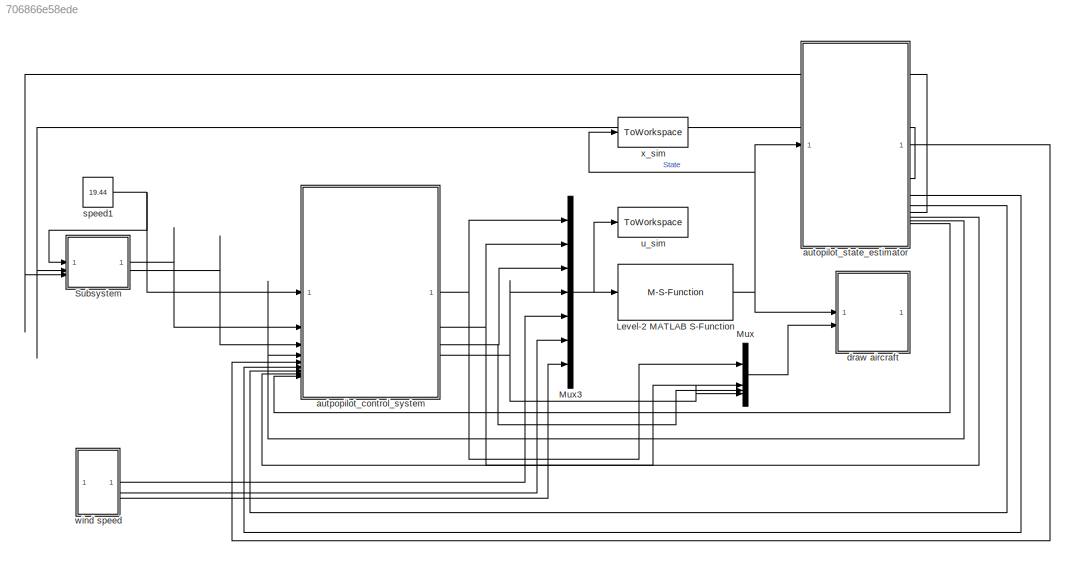
MODEL slx_706866e58ede
KIND model
CONFIG AbsTol = auto
CONFIG EnableMultiTasking = off
CONFIG FixedStep = auto
CONFIG InitFcn = parameters
CONFIG MaxStep = auto
CONFIG MinStep = 1e-200
CONFIG RelTol = 1e-3
CONFIG SampleTimeConstraint = Unconstrained
CONFIG SolverName = ode15s
CONFIG StartTime = 0.0
CONFIG StopTime = 75
BLOCK [M-S-Function] Level-2 MATLAB S-Function
  FunctionName = aircraft_dynamics
  Parameters = P
BLOCK [Mux] Mux
  DisplayOption = bar
BLOCK [Mux] Mux3
  DisplayOption = bar
  Inputs = 7
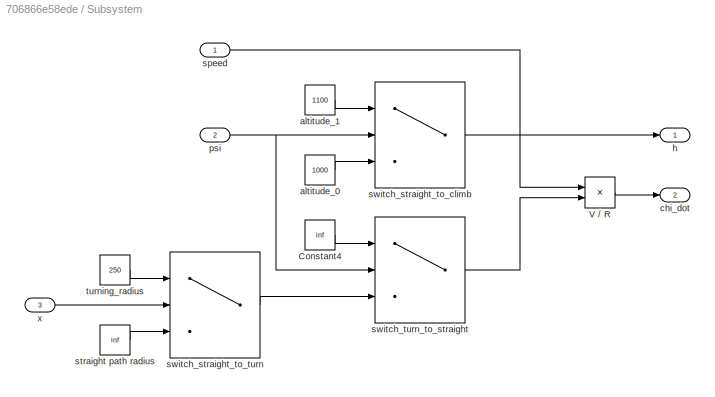
BLOCK [SubSystem] Subsystem
BLOCK [Constant] Subsystem/Constant4
  Value = inf
BLOCK [Product] Subsystem/V // R
  Inputs = */
BLOCK [Constant] Subsystem/altitude_0
  Value = 1000
BLOCK [Constant] Subsystem/altitude_1
  Value = 1100
BLOCK [Outport] Subsystem/chi_dot
  Port = 2
BLOCK [Outport] Subsystem/h
BLOCK [Inport] Subsystem/psi
  Port = 2
BLOCK [Inport] Subsystem/speed
BLOCK [Constant] Subsystem/straight path radius
  Value = inf
BLOCK [Switch] Subsystem/switch_straight_to_climb
  Criteria = u2 > Threshold
  InputSameDT = off
  SaturateOnIntegerOverflow = off
  Threshold = 90 * pi / 180
BLOCK [Switch] Subsystem/switch_straight_to_turn
  Criteria = u2 > Threshold
  InputSameDT = off
  SaturateOnIntegerOverflow = off
  Threshold = 250
BLOCK [Switch] Subsystem/switch_turn_to_straight
  Criteria = u2 > Threshold
  InputSameDT = off
  SaturateOnIntegerOverflow = off
  Threshold = 90 * pi / 180
BLOCK [Constant] Subsystem/turning_radius
  Value = 250
BLOCK [Inport] Subsystem/x
  Port = 3
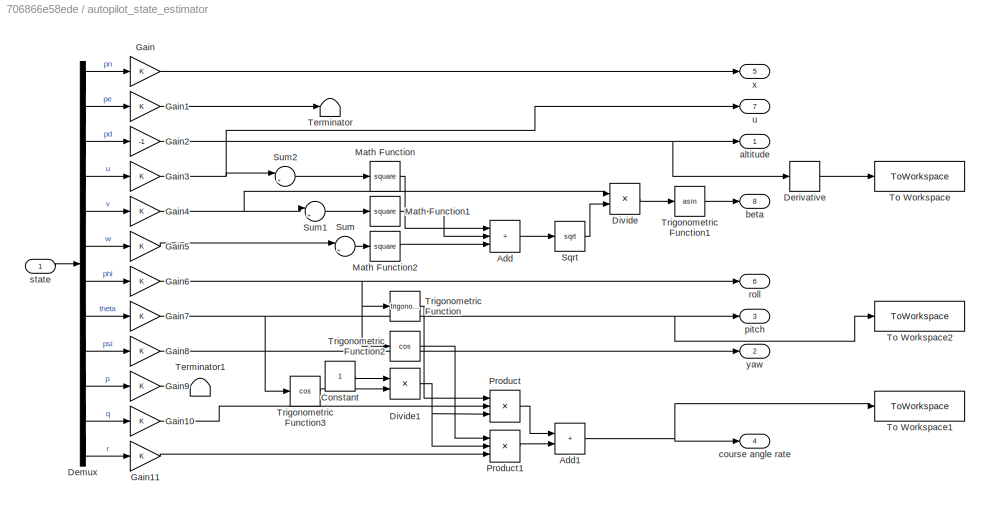
BLOCK [SubSystem] autopilot_state_estimator
BLOCK [Sum] autopilot_state_estimator/Add
  IconShape = rectangular
  Inputs = +++
BLOCK [Sum] autopilot_state_estimator/Add1
  IconShape = rectangular
BLOCK [Constant] autopilot_state_estimator/Constant
BLOCK [Demux] autopilot_state_estimator/Demux
  Outputs = 12
BLOCK [Derivative] autopilot_state_estimator/Derivative
BLOCK [Product] autopilot_state_estimator/Divide
  Inputs = */
BLOCK [Product] autopilot_state_estimator/Divide1
  Inputs = */
BLOCK [Gain] autopilot_state_estimator/Gain
BLOCK [Gain] autopilot_state_estimator/Gain1
BLOCK [Gain] autopilot_state_estimator/Gain10
BLOCK [Gain] autopilot_state_estimator/Gain11
BLOCK [Gain] autopilot_state_estimator/Gain2
  Gain = -1
BLOCK [Gain] autopilot_state_estimator/Gain3
BLOCK [Gain] autopilot_state_estimator/Gain4
BLOCK [Gain] autopilot_state_estimator/Gain5
BLOCK [Gain] autopilot_state_estimator/Gain6
BLOCK [Gain] autopilot_state_estimator/Gain7
BLOCK [Gain] autopilot_state_estimator/Gain8
BLOCK [Gain] autopilot_state_estimator/Gain9
BLOCK [Math] autopilot_state_estimator/Math Function
  Operator = square
BLOCK [Math] autopilot_state_estimator/Math Function1
  Operator = square
BLOCK [Math] autopilot_state_estimator/Math Function2
  Operator = square
BLOCK [Product] autopilot_state_estimator/Product
  Inputs = 3
BLOCK [Product] autopilot_state_estimator/Product1
  Inputs = 3
BLOCK [Sqrt] autopilot_state_estimator/Sqrt
BLOCK [Sum] autopilot_state_estimator/Sum
  Inputs = |+-
BLOCK [Sum] autopilot_state_estimator/Sum1
  Inputs = |+-
BLOCK [Sum] autopilot_state_estimator/Sum2
  Inputs = |+-
BLOCK [Terminator] autopilot_state_estimator/Terminator
BLOCK [Terminator] autopilot_state_estimator/Terminator1
BLOCK [ToWorkspace] autopilot_state_estimator/To Workspace
  FixptAsFi = on
  MaxDataPoints = inf
  SampleTime = -1
  SaveFormat = Timeseries
  VariableName = climb_rate
BLOCK [ToWorkspace] autopilot_state_estimator/To Workspace1
  FixptAsFi = on
  MaxDataPoints = inf
  SampleTime = -1
  SaveFormat = Timeseries
  VariableName = course_angle_rate
BLOCK [ToWorkspace] autopilot_state_estimator/To Workspace2
  FixptAsFi = on
  MaxDataPoints = inf
  SampleTime = -1
  SaveFormat = Timeseries
  VariableName = pitch
BLOCK [Trigonometry] autopilot_state_estimator/Trigonometric Function
BLOCK [Trigonometry] autopilot_state_estimator/Trigonometric Function1
  Operator = asin
BLOCK [Trigonometry] autopilot_state_estimator/Trigonometric Function2
  Operator = cos
BLOCK [Trigonometry] autopilot_state_estimator/Trigonometric Function3
  Operator = cos
BLOCK [Outport] autopilot_state_estimator/altitude
BLOCK [Outport] autopilot_state_estimator/beta
  Port = 8
BLOCK [Outport] autopilot_state_estimator/course angle rate
  Port = 4
BLOCK [Outport] autopilot_state_estimator/pitch
  Port = 3
BLOCK [Outport] autopilot_state_estimator/roll
  Port = 6
BLOCK [Inport] autopilot_state_estimator/state
BLOCK [Outport] autopilot_state_estimator/u
  Port = 7
BLOCK [Outport] autopilot_state_estimator/x
  Port = 5
BLOCK [Outport] autopilot_state_estimator/yaw
  Port = 2
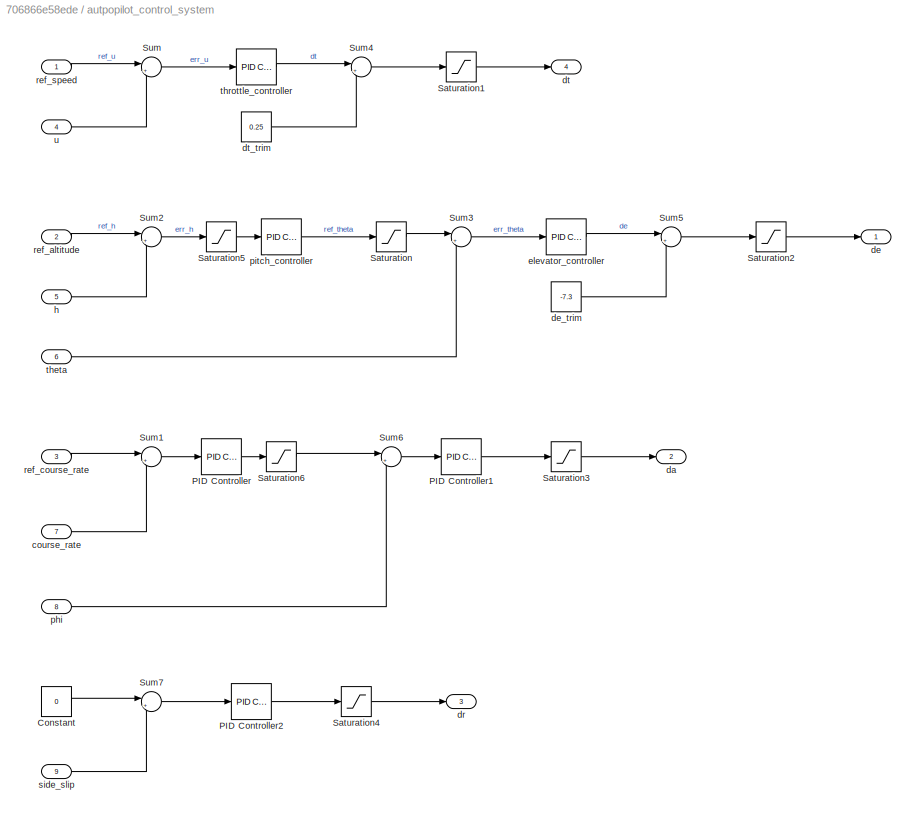
BLOCK [SubSystem] autpopilot_control_system
BLOCK [Constant] autpopilot_control_system/Constant
  Value = 0
BLOCK [Reference] autpopilot_control_system/PID Controller  REF=slpidlib/PID Controller
  LibrarySourceBlock = simulink/Continuous/PID Controller
  SourceBlock = slpidlib/PID Controller
  SourceType = PID 1dof
BLOCK [Reference] autpopilot_control_system/PID Controller1  REF=slpidlib/PID Controller
  LibrarySourceBlock = simulink/Continuous/PID Controller
  SourceBlock = slpidlib/PID Controller
  SourceType = PID 1dof
BLOCK [Reference] autpopilot_control_system/PID Controller2  REF=slpidlib/PID Controller
  LibrarySourceBlock = simulink/Continuous/PID Controller
  SourceBlock = slpidlib/PID Controller
  SourceType = PID 1dof
BLOCK [Saturate] autpopilot_control_system/Saturation
  LowerLimit = -0.05
  UpperLimit = 0.28
BLOCK [Saturate] autpopilot_control_system/Saturation1
  LowerLimit = 0
  UpperLimit = 1
BLOCK [Saturate] autpopilot_control_system/Saturation2
  LowerLimit = -50
  UpperLimit = 50
BLOCK [Saturate] autpopilot_control_system/Saturation3
  LowerLimit = -50
  UpperLimit = 50
BLOCK [Saturate] autpopilot_control_system/Saturation4
  LowerLimit = -50
  UpperLimit = 50
BLOCK [Saturate] autpopilot_control_system/Saturation5
  LowerLimit = -10
  UpperLimit = 10
BLOCK [Saturate] autpopilot_control_system/Saturation6
  LowerLimit = -1
  UpperLimit = 1
BLOCK [Sum] autpopilot_control_system/Sum
  Inputs = |+-
BLOCK [Sum] autpopilot_control_system/Sum1
  Inputs = |+-
BLOCK [Sum] autpopilot_control_system/Sum2
  Inputs = |+-
BLOCK [Sum] autpopilot_control_system/Sum3
  Inputs = |+-
BLOCK [Sum] autpopilot_control_system/Sum4
  Inputs = |++
BLOCK [Sum] autpopilot_control_system/Sum5
  Inputs = |++
BLOCK [Sum] autpopilot_control_system/Sum6
  Inputs = |+-
BLOCK [Sum] autpopilot_control_system/Sum7
  Inputs = |+-
BLOCK [Inport] autpopilot_control_system/course_rate
  Port = 7
BLOCK [Outport] autpopilot_control_system/da
  Port = 2
BLOCK [Outport] autpopilot_control_system/de
BLOCK [Constant] autpopilot_control_system/de_trim
  Value = -7.3
BLOCK [Outport] autpopilot_control_system/dr
  Port = 3
BLOCK [Outport] autpopilot_control_system/dt
  Port = 4
BLOCK [Constant] autpopilot_control_system/dt_trim
  Value = 0.25
BLOCK [Reference] autpopilot_control_system/elevator_controller  REF=slpidlib/PID Controller
  LibrarySourceBlock = simulink/Continuous/PID Controller
  SourceBlock = slpidlib/PID Controller
  SourceType = PID 1dof
BLOCK [Inport] autpopilot_control_system/h
  Port = 5
BLOCK [Inport] autpopilot_control_system/phi
  Port = 8
BLOCK [Reference] autpopilot_control_system/pitch_controller  REF=slpidlib/PID Controller
  LibrarySourceBlock = simulink/Continuous/PID Controller
  SourceBlock = slpidlib/PID Controller
  SourceType = PID 1dof
BLOCK [Inport] autpopilot_control_system/ref_altitude
  Port = 2
BLOCK [Inport] autpopilot_control_system/ref_course_rate
  Port = 3
BLOCK [Inport] autpopilot_control_system/ref_speed
BLOCK [Inport] autpopilot_control_system/side_slip
  Port = 9
BLOCK [Inport] autpopilot_control_system/theta
  Port = 6
BLOCK [Reference] autpopilot_control_system/throttle_controller  REF=slpidlib/PID Controller
  LibrarySourceBlock = simulink/Continuous/PID Controller
  SourceBlock = slpidlib/PID Controller
  SourceType = PID 1dof
BLOCK [Inport] autpopilot_control_system/u
  Port = 4
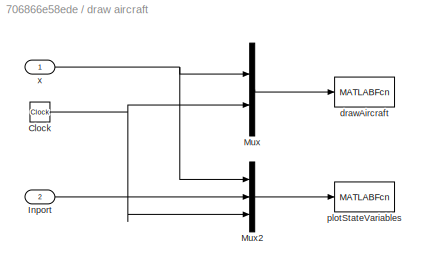
BLOCK [SubSystem] draw aircraft
BLOCK [Clock] draw aircraft/Clock
BLOCK [Inport] draw aircraft/Inport
  Port = 2
BLOCK [Mux] draw aircraft/Mux
  DisplayOption = bar
  Inputs = 2
BLOCK [Mux] draw aircraft/Mux2
  DisplayOption = bar
  Inputs = 3
BLOCK [MATLABFcn] draw aircraft/drawAircraft
  MATLABFcn = drawAircraft(u)
  OutputDimensions = 0
  SampleTime = 0.1
BLOCK [MATLABFcn] draw aircraft/plotStateVariables
  MATLABFcn = plotmavstatevariables(u)
  OutputDimensions = 0
  SampleTime = 0.1
BLOCK [Inport] draw aircraft/x
BLOCK [Constant] speed1
  Value = 19.44
BLOCK [ToWorkspace] u_sim
  MaxDataPoints = inf
  SampleTime = -1
  SaveFormat = Timeseries
  VariableName = u_sim
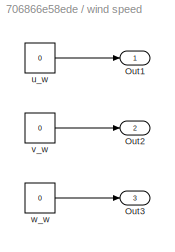
BLOCK [SubSystem] wind speed
BLOCK [Outport] wind speed/Out1
BLOCK [Outport] wind speed/Out2
  Port = 2
BLOCK [Outport] wind speed/Out3
  Port = 3
BLOCK [Constant] wind speed/u_w
  Value = 0
BLOCK [Constant] wind speed/v_w
  Value = 0
BLOCK [Constant] wind speed/w_w
  Value = 0
BLOCK [ToWorkspace] x_sim
  MaxDataPoints = inf
  SampleTime = -1
  SaveFormat = Timeseries
  VariableName = x_sim
NET Level-2 MATLAB S-Function:1 -> autopilot_state_estimator:1, draw aircraft:1, x_sim:1
NET Mux3:1 -> Level-2 MATLAB S-Function:1, u_sim:1
LINE Mux:1 -> draw aircraft:2
LINE Subsystem/Constant4:1 -> Subsystem/switch_turn_to_straight:1
LINE Subsystem/V // R:1 -> Subsystem/chi_dot:1
LINE Subsystem/altitude_0:1 -> Subsystem/switch_straight_to_climb:3
LINE Subsystem/altitude_1:1 -> Subsystem/switch_straight_to_climb:1
NET Subsystem/psi:1 -> Subsystem/switch_straight_to_climb:2, Subsystem/switch_turn_to_straight:2
LINE Subsystem/speed:1 -> Subsystem/V // R:1
LINE Subsystem/straight path radius:1 -> Subsystem/switch_straight_to_turn:3
LINE Subsystem/switch_straight_to_climb:1 -> Subsystem/h:1
LINE Subsystem/switch_straight_to_turn:1 -> Subsystem/switch_turn_to_straight:3
LINE Subsystem/switch_turn_to_straight:1 -> Subsystem/V // R:2
LINE Subsystem/turning_radius:1 -> Subsystem/switch_straight_to_turn:1
LINE Subsystem/x:1 -> Subsystem/switch_straight_to_turn:2
LINE Subsystem:1 -> autpopilot_control_system:2
LINE Subsystem:2 -> autpopilot_control_system:3
NET autopilot_state_estimator/Add1:1 -> autopilot_state_estimator/To Workspace1:1, autopilot_state_estimator/course angle rate:1
LINE autopilot_state_estimator/Add:1 -> autopilot_state_estimator/Sqrt:1
LINE autopilot_state_estimator/Constant:1 -> autopilot_state_estimator/Divide1:1
LINE autopilot_state_estimator/Demux:1 -> autopilot_state_estimator/Gain:1
LINE autopilot_state_estimator/Demux:10 -> autopilot_state_estimator/Gain9:1
LINE autopilot_state_estimator/Demux:11 -> autopilot_state_estimator/Gain10:1
LINE autopilot_state_estimator/Demux:12 -> autopilot_state_estimator/Gain11:1
LINE autopilot_state_estimator/Demux:2 -> autopilot_state_estimator/Gain1:1
LINE autopilot_state_estimator/Demux:3 -> autopilot_state_estimator/Gain2:1
LINE autopilot_state_estimator/Demux:4 -> autopilot_state_estimator/Gain3:1
LINE autopilot_state_estimator/Demux:5 -> autopilot_state_estimator/Gain4:1
LINE autopilot_state_estimator/Demux:6 -> autopilot_state_estimator/Gain5:1
LINE autopilot_state_estimator/Demux:7 -> autopilot_state_estimator/Gain6:1
LINE autopilot_state_estimator/Demux:8 -> autopilot_state_estimator/Gain7:1
LINE autopilot_state_estimator/Demux:9 -> autopilot_state_estimator/Gain8:1
LINE autopilot_state_estimator/Derivative:1 -> autopilot_state_estimator/To Workspace:1
NET autopilot_state_estimator/Divide1:1 -> autopilot_state_estimator/Product1:2, autopilot_state_estimator/Product:3
LINE autopilot_state_estimator/Divide:1 -> autopilot_state_estimator/Trigonometric Function1:1
LINE autopilot_state_estimator/Gain10:1 -> autopilot_state_estimator/Product:2
LINE autopilot_state_estimator/Gain11:1 -> autopilot_state_estimator/Product1:3
LINE autopilot_state_estimator/Gain1:1 -> autopilot_state_estimator/Terminator:1
NET autopilot_state_estimator/Gain2:1 -> autopilot_state_estimator/Derivative:1, autopilot_state_estimator/altitude:1
NET autopilot_state_estimator/Gain3:1 -> autopilot_state_estimator/Sum2:1, autopilot_state_estimator/u:1
NET autopilot_state_estimator/Gain4:1 -> autopilot_state_estimator/Divide:1, autopilot_state_estimator/Sum1:1
LINE autopilot_state_estimator/Gain5:1 -> autopilot_state_estimator/Sum:1
NET autopilot_state_estimator/Gain6:1 -> autopilot_state_estimator/Trigonometric Function2:1, autopilot_state_estimator/Trigonometric Function:1, autopilot_state_estimator/roll:1
NET autopilot_state_estimator/Gain7:1 -> autopilot_state_estimator/To Workspace2:1, autopilot_state_estimator/Trigonometric Function3:1, autopilot_state_estimator/pitch:1
LINE autopilot_state_estimator/Gain8:1 -> autopilot_state_estimator/yaw:1
LINE autopilot_state_estimator/Gain9:1 -> autopilot_state_estimator/Terminator1:1
LINE autopilot_state_estimator/Gain:1 -> autopilot_state_estimator/x:1
LINE autopilot_state_estimator/Math Function1:1 -> autopilot_state_estimator/Add:2
LINE autopilot_state_estimator/Math Function2:1 -> autopilot_state_estimator/Add:3
LINE autopilot_state_estimator/Math Function:1 -> autopilot_state_estimator/Add:1
LINE autopilot_state_estimator/Product1:1 -> autopilot_state_estimator/Add1:2
LINE autopilot_state_estimator/Product:1 -> autopilot_state_estimator/Add1:1
LINE autopilot_state_estimator/Sqrt:1 -> autopilot_state_estimator/Divide:2
LINE autopilot_state_estimator/Sum1:1 -> autopilot_state_estimator/Math Function1:1
LINE autopilot_state_estimator/Sum2:1 -> autopilot_state_estimator/Math Function:1
LINE autopilot_state_estimator/Sum:1 -> autopilot_state_estimator/Math Function2:1
LINE autopilot_state_estimator/Trigonometric Function1:1 -> autopilot_state_estimator/beta:1
LINE autopilot_state_estimator/Trigonometric Function2:1 -> autopilot_state_estimator/Product1:1
LINE autopilot_state_estimator/Trigonometric Function3:1 -> autopilot_state_estimator/Divide1:2
LINE autopilot_state_estimator/Trigonometric Function:1 -> autopilot_state_estimator/Product:1
LINE autopilot_state_estimator/state:1 -> autopilot_state_estimator/Demux:1
LINE autopilot_state_estimator:1 -> autpopilot_control_system:5
LINE autopilot_state_estimator:2 -> Subsystem:2
LINE autopilot_state_estimator:3 -> autpopilot_control_system:6
LINE autopilot_state_estimator:4 -> autpopilot_control_system:7
LINE autopilot_state_estimator:5 -> Subsystem:3
LINE autopilot_state_estimator:6 -> autpopilot_control_system:8
LINE autopilot_state_estimator:7 -> autpopilot_control_system:4
LINE autopilot_state_estimator:8 -> autpopilot_control_system:9
LINE autpopilot_control_system/Constant:1 -> autpopilot_control_system/Sum7:1
LINE autpopilot_control_system/PID Controller1:1 -> autpopilot_control_system/Saturation3:1
LINE autpopilot_control_system/PID Controller2:1 -> autpopilot_control_system/Saturation4:1
LINE autpopilot_control_system/PID Controller:1 -> autpopilot_control_system/Saturation6:1
LINE autpopilot_control_system/Saturation1:1 -> autpopilot_control_system/dt:1
LINE autpopilot_control_system/Saturation2:1 -> autpopilot_control_system/de:1
LINE autpopilot_control_system/Saturation3:1 -> autpopilot_control_system/da:1
LINE autpopilot_control_system/Saturation4:1 -> autpopilot_control_system/dr:1
LINE autpopilot_control_system/Saturation5:1 -> autpopilot_control_system/pitch_controller:1
LINE autpopilot_control_system/Saturation6:1 -> autpopilot_control_system/Sum6:1
LINE autpopilot_control_system/Saturation:1 -> autpopilot_control_system/Sum3:1
LINE autpopilot_control_system/Sum1:1 -> autpopilot_control_system/PID Controller:1
LINE autpopilot_control_system/Sum2:1 -> autpopilot_control_system/Saturation5:1
LINE autpopilot_control_system/Sum3:1 -> autpopilot_control_system/elevator_controller:1
LINE autpopilot_control_system/Sum4:1 -> autpopilot_control_system/Saturation1:1
LINE autpopilot_control_system/Sum5:1 -> autpopilot_control_system/Saturation2:1
LINE autpopilot_control_system/Sum6:1 -> autpopilot_control_system/PID Controller1:1
LINE autpopilot_control_system/Sum7:1 -> autpopilot_control_system/PID Controller2:1
LINE autpopilot_control_system/Sum:1 -> autpopilot_control_system/throttle_controller:1
LINE autpopilot_control_system/course_rate:1 -> autpopilot_control_system/Sum1:2
LINE autpopilot_control_system/de_trim:1 -> autpopilot_control_system/Sum5:2
LINE autpopilot_control_system/dt_trim:1 -> autpopilot_control_system/Sum4:2
LINE autpopilot_control_system/elevator_controller:1 -> autpopilot_control_system/Sum5:1
LINE autpopilot_control_system/h:1 -> autpopilot_control_system/Sum2:2
LINE autpopilot_control_system/phi:1 -> autpopilot_control_system/Sum6:2
LINE autpopilot_control_system/pitch_controller:1 -> autpopilot_control_system/Saturation:1
LINE autpopilot_control_system/ref_altitude:1 -> autpopilot_control_system/Sum2:1
LINE autpopilot_control_system/ref_course_rate:1 -> autpopilot_control_system/Sum1:1
LINE autpopilot_control_system/ref_speed:1 -> autpopilot_control_system/Sum:1
LINE autpopilot_control_system/side_slip:1 -> autpopilot_control_system/Sum7:2
LINE autpopilot_control_system/theta:1 -> autpopilot_control_system/Sum3:2
LINE autpopilot_control_system/throttle_controller:1 -> autpopilot_control_system/Sum4:1
LINE autpopilot_control_system/u:1 -> autpopilot_control_system/Sum:2
NET autpopilot_control_system:1 -> Mux3:1, Mux:1
NET autpopilot_control_system:2 -> Mux3:2, Mux:2
NET autpopilot_control_system:3 -> Mux3:3, Mux:3
NET autpopilot_control_system:4 -> Mux3:4, Mux:4
NET draw aircraft/Clock:1 -> draw aircraft/Mux2:3, draw aircraft/Mux:2
LINE draw aircraft/Inport:1 -> draw aircraft/Mux2:2
LINE draw aircraft/Mux2:1 -> draw aircraft/plotStateVariables:1
LINE draw aircraft/Mux:1 -> draw aircraft/drawAircraft:1
NET draw aircraft/x:1 -> draw aircraft/Mux2:1, draw aircraft/Mux:1
NET speed1:1 -> Subsystem:1, autpopilot_control_system:1
LINE wind speed/u_w:1 -> wind speed/Out1:1
LINE wind speed/v_w:1 -> wind speed/Out2:1
LINE wind speed/w_w:1 -> wind speed/Out3:1
LINE wind speed:1 -> Mux3:5
LINE wind speed:2 -> Mux3:6
LINE wind speed:3 -> Mux3:7
note: NET lines group one-source signal fan-out (src -> all destinations, sorted); 1:1 wires keep LINE
